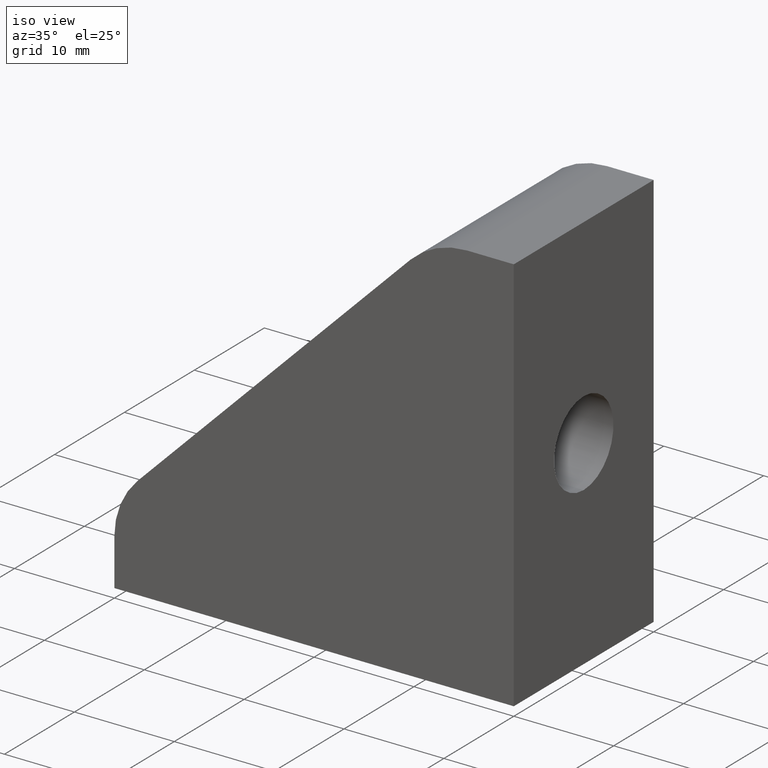
[diagram: clean part render]
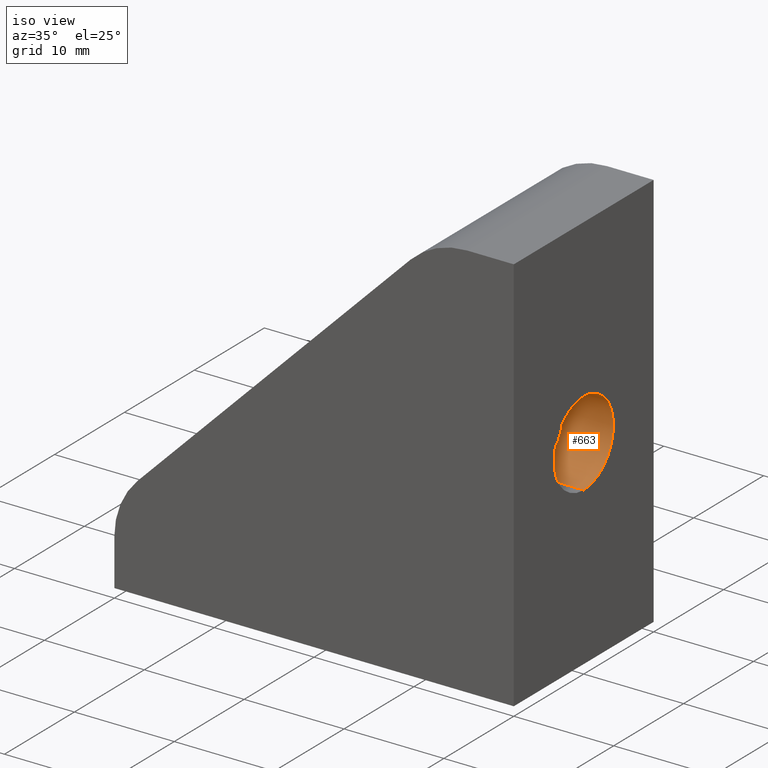
[diagram: same view with one face highlighted and labeled with its STEP entity id]
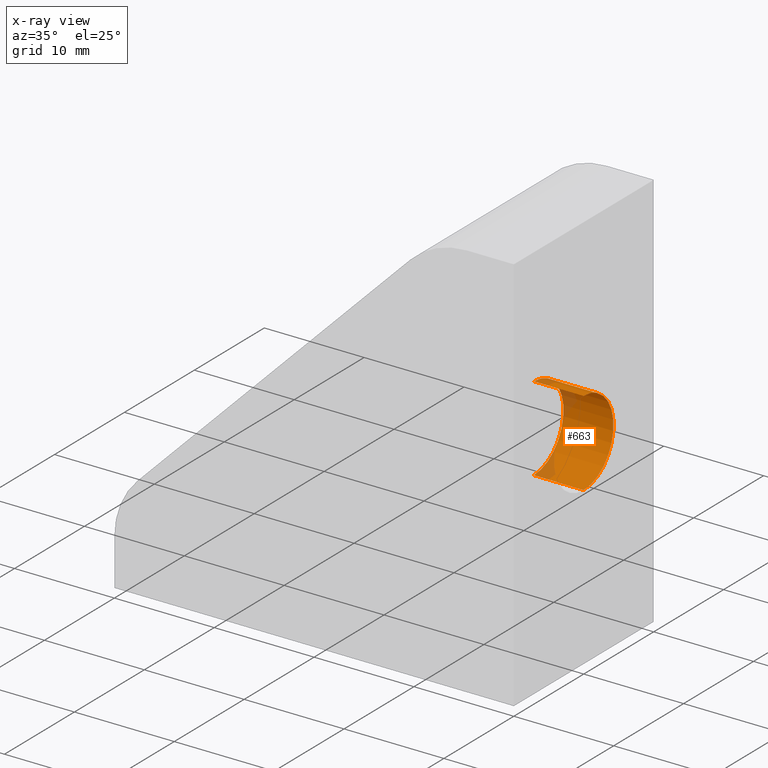
[diagram: x-ray of the same camera — body ghosted, the highlighted face saturated]
A machine part, iso view. The second image highlights one B-rep face of the part: STEP entity #663.
The next image is the same camera in x-ray: the body ghosted, the highlighted face saturated — about 12% of this face is hidden behind the body in this view.
In plain terms, the highlighted cylindrical surface (partial cylindrical patch) has radius 4.25 mm, axis along (-1, 0, 0).
Its self-contained STEP definition (entity closure, byte-faithful):
#72=CARTESIAN_POINT('',(0.0,-1.065814E-014,15.749999999999995));
#73=VERTEX_POINT('',#72);
#74=CARTESIAN_POINT('',(0.0,-1.065814E-014,24.250000000000000));
#75=VERTEX_POINT('',#74);
#83=CARTESIAN_POINT('',(-5.0,-1.065814E-014,15.749999999999995));
#84=VERTEX_POINT('',#83);
#85=CARTESIAN_POINT('',(0.0,-1.065814E-014,15.749999999999995));
#86=DIRECTION('',(-1.0,0.0,0.0));
#87=VECTOR('',#86,5.0);
#88=LINE('',#85,#87);
#89=EDGE_CURVE('',#73,#84,#88,.T.);
#91=CARTESIAN_POINT('',(-5.0,-1.065814E-014,24.250000000000000));
#92=VERTEX_POINT('',#91);
#100=CARTESIAN_POINT('',(0.0,-1.065814E-014,24.250000000000000));
#101=DIRECTION('',(-1.0,0.0,0.0));
#102=VECTOR('',#101,5.0);
#103=LINE('',#100,#102);
#104=EDGE_CURVE('',#75,#92,#103,.T.);
#581=CARTESIAN_POINT('',(0.0,-1.065814E-014,20.0));
#582=DIRECTION('',(-1.0,0.0,0.0));
#583=DIRECTION('',(0.0,0.0,1.0));
#584=AXIS2_PLACEMENT_3D('',#581,#582,#583);
#585=CIRCLE('',#584,4.250000000000000);
#586=EDGE_CURVE('',#75,#73,#585,.T.);
#646=CARTESIAN_POINT('',(0.000000010000001,-1.065814E-014,20.0));
#647=DIRECTION('',(-1.0,0.0,0.0));
#648=DIRECTION('',(0.0,-1.0,0.0));
#649=AXIS2_PLACEMENT_3D('',#646,#647,#648);
#650=CYLINDRICAL_SURFACE('',#649,4.250000000000000);
#651=ORIENTED_EDGE('',*,*,#89,.F.);
#652=ORIENTED_EDGE('',*,*,#586,.F.);
#653=ORIENTED_EDGE('',*,*,#104,.T.);
#654=CARTESIAN_POINT('',(-5.0,-1.065814E-014,20.0));
#655=DIRECTION('',(-1.0,0.0,0.0));
#656=DIRECTION('',(0.0,0.0,-1.0));
#657=AXIS2_PLACEMENT_3D('',#654,#655,#656);
#658=CIRCLE('',#657,4.250000000000000);
#659=EDGE_CURVE('',#92,#84,#658,.T.);
#660=ORIENTED_EDGE('',*,*,#659,.T.);
#661=EDGE_LOOP('',(#651,#652,#653,#660));
#662=FACE_OUTER_BOUND('',#661,.T.);
#663=ADVANCED_FACE('',(#662),#650,.F.);